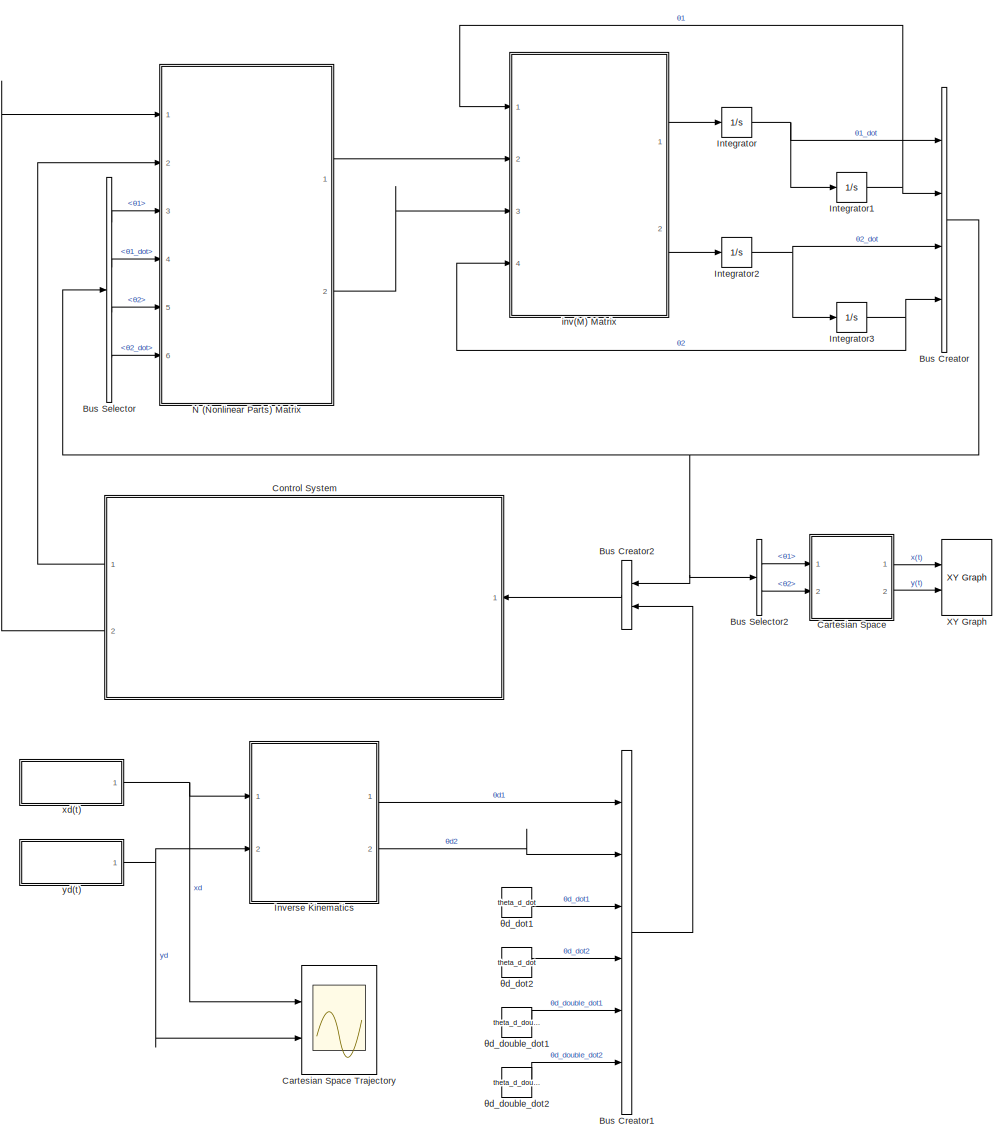
[diagram: root canvas - part 1/1, most of the canvas]
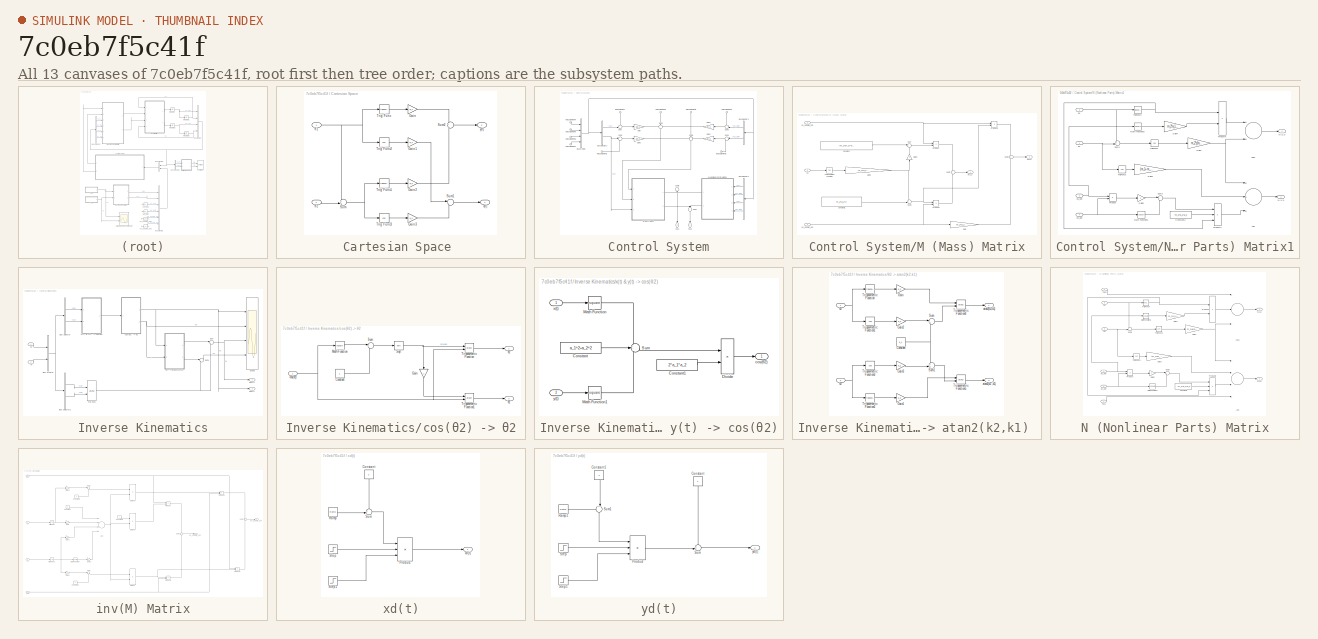
[diagram: thumbnail index - all 13 canvases of the model, root first then tree order]
MODEL slx_7c0eb7f5c41f
KIND model
CONFIG AbsTol = auto
CONFIG EnableMultiTasking = off
CONFIG FixedStep = 0.01
CONFIG MaxStep = auto
CONFIG MinStep = auto
CONFIG RelTol = 0.00001
CONFIG SampleTimeConstraint = Unconstrained
CONFIG Solver = FixedStepAuto
CONFIG SolverName = FixedStepAuto
CONFIG StartTime = 0.0
CONFIG StopTime = 10.0
WORKSPACE source: MAT-file member
WORKSPACE Kp_1 = 10000
WORKSPACE Kp_2 = 10000
WORKSPACE Kv_1 = 200
BLOCK [BusCreator] Bus Creator
  DisplayOption = bar
  InheritFromInputs = on
  Inputs = 4
  Ports = [4, 1]
BLOCK [BusCreator] Bus Creator1
  DisplayOption = bar
  InheritFromInputs = on
  Inputs = 6
  Ports = [6, 1]
BLOCK [BusCreator] Bus Creator2
  DisplayOption = bar
  InheritFromInputs = on
  Inputs = 2
  Ports = [2, 1]
BLOCK [BusSelector] Bus Selector
  OutputAsBus = off
  OutputSignals = θ1,θ1_dot,θ2,θ2_dot
  Ports = [1, 4]
BLOCK [BusSelector] Bus Selector2
  OutputAsBus = off
  OutputSignals = θ1,θ2
  Ports = [1, 2]
BLOCK [SubSystem] Cartesian Space 
  Ports = [2, 2]
  RequestExecContextInheritance = off
  TreatAsAtomicUnit = on
  Variant = off
BLOCK [Gain] Cartesian Space /Gain
  Gain = a_1
  OutDataTypeStr = Inherit: Inherit via internal rule
  ParamDataTypeStr = Inherit: Inherit via internal rule
  SaturateOnIntegerOverflow = off
BLOCK [Gain] Cartesian Space /Gain1
  Gain = a_1
  OutDataTypeStr = Inherit: Inherit via internal rule
  ParamDataTypeStr = Inherit: Inherit via internal rule
  SaturateOnIntegerOverflow = off
BLOCK [Gain] Cartesian Space /Gain2
  Gain = a_2
  OutDataTypeStr = Inherit: Inherit via internal rule
  ParamDataTypeStr = Inherit: Inherit via internal rule
  SaturateOnIntegerOverflow = off
BLOCK [Gain] Cartesian Space /Gain3
  Gain = a_2
  OutDataTypeStr = Inherit: Inherit via internal rule
  ParamDataTypeStr = Inherit: Inherit via internal rule
  SaturateOnIntegerOverflow = off
BLOCK [Sum] Cartesian Space /Sum
  IconShape = round
  InputSameDT = off
  Inputs = ++|
  OutDataTypeStr = Inherit: Inherit via internal rule
  Ports = [2, 1]
  SaturateOnIntegerOverflow = off
BLOCK [Sum] Cartesian Space /Sum1
  IconShape = round
  InputSameDT = off
  Inputs = |++
  OutDataTypeStr = Inherit: Inherit via internal rule
  Ports = [2, 1]
  SaturateOnIntegerOverflow = off
BLOCK [Sum] Cartesian Space /Sum2
  IconShape = round
  InputSameDT = off
  Inputs = +|+
  OutDataTypeStr = Inherit: Inherit via internal rule
  Ports = [2, 1]
  SaturateOnIntegerOverflow = off
BLOCK [Trigonometry] Cartesian Space /Trig Func
  Ports = [1, 1]
BLOCK [Trigonometry] Cartesian Space /Trig Func1
  Ports = [1, 1]
BLOCK [Trigonometry] Cartesian Space /Trig Func2
  Operator = cos
  Ports = [1, 1]
BLOCK [Trigonometry] Cartesian Space /Trig Func3
  Operator = cos
  Ports = [1, 1]
BLOCK [Outport] Cartesian Space /x(t)
  IconDisplay = Port number
BLOCK [Outport] Cartesian Space /y(t)
  IconDisplay = Port number
  Port = 2
BLOCK [Inport] Cartesian Space /θ1
  IconDisplay = Port number
BLOCK [Inport] Cartesian Space /θ2
  IconDisplay = Port number
  Port = 2
BLOCK [Scope] Cartesian Space Trajectory
  NumInputPorts = 2
  Ports = [2]
  ScopeSpecificationString = Simulink.scopes.TimeScopeBlockCfg('CurrentConfiguration', extmgr.ConfigurationSet(extmgr.Configuration('Core','General UI',true),extmgr.Configuration('Core','Source UI',true),extmgr.Configuration('Sources','WiredSimulink',true,'DataLoggingVariableName','ScopeData1'),extmgr.Configuration('Visuals','Time Domain',true,'SerializedDisplays',{struct('MinYLimReal','-0.25','MaxYLimReal','2.25','YLabelReal...<+1379ch>
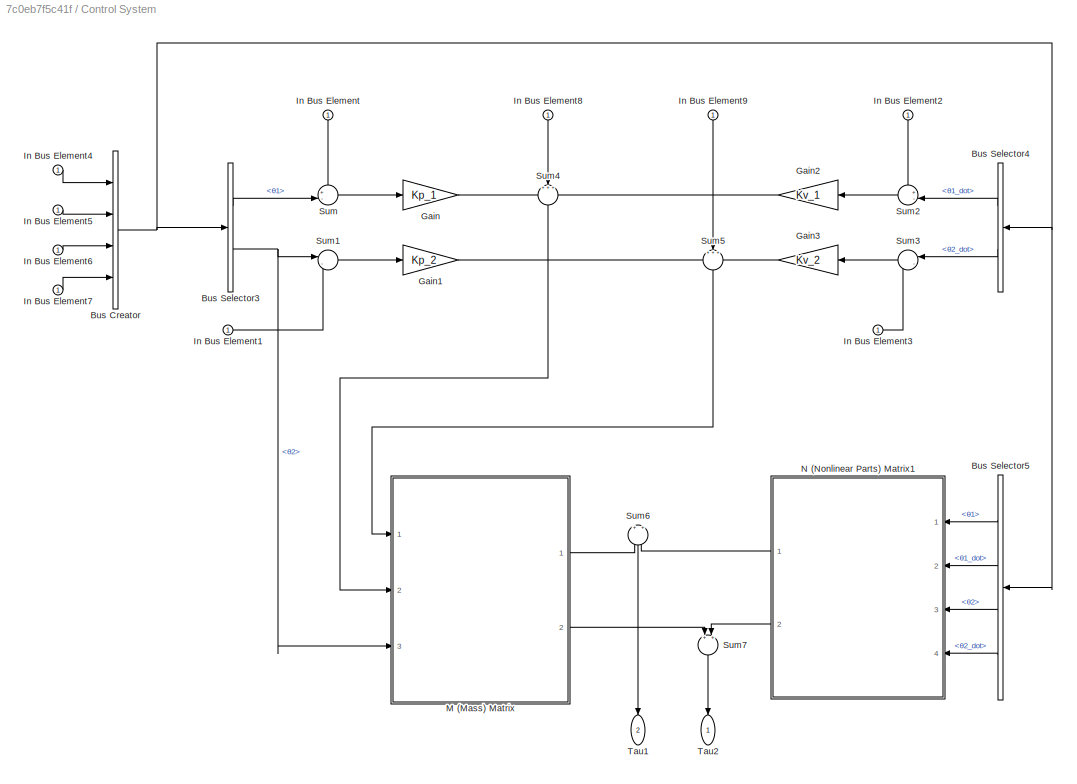
BLOCK [SubSystem] Control System
  Ports = [1, 2]
  RequestExecContextInheritance = off
  TreatAsAtomicUnit = on
  Variant = off
BLOCK [BusCreator] Control System/Bus Creator
  DisplayOption = bar
  InheritFromInputs = on
  Inputs = 4
  Ports = [4, 1]
BLOCK [BusSelector] Control System/Bus Selector3
  OutputAsBus = off
  OutputSignals = θ1,θ2
  Ports = [1, 2]
BLOCK [BusSelector] Control System/Bus Selector4
  OutputAsBus = off
  OutputSignals = θ1_dot,θ2_dot
  Ports = [1, 2]
BLOCK [BusSelector] Control System/Bus Selector5
  OutputAsBus = off
  OutputSignals = θ1,θ1_dot,θ2,θ2_dot
  Ports = [1, 4]
BLOCK [Gain] Control System/Gain
  Gain = Kp_1
  OutDataTypeStr = Inherit: Inherit via internal rule
  ParamDataTypeStr = Inherit: Inherit via internal rule
  SaturateOnIntegerOverflow = off
BLOCK [Gain] Control System/Gain1
  Gain = Kp_2
  OutDataTypeStr = Inherit: Inherit via internal rule
  ParamDataTypeStr = Inherit: Inherit via internal rule
  SaturateOnIntegerOverflow = off
BLOCK [Gain] Control System/Gain2
  Gain = Kv_1
  OutDataTypeStr = Inherit: Inherit via internal rule
  ParamDataTypeStr = Inherit: Inherit via internal rule
  SaturateOnIntegerOverflow = off
BLOCK [Gain] Control System/Gain3
  Gain = Kv_2
  OutDataTypeStr = Inherit: Inherit via internal rule
  ParamDataTypeStr = Inherit: Inherit via internal rule
  SaturateOnIntegerOverflow = off
BLOCK [Inport] Control System/In Bus Element
  IconDisplay = Port number
BLOCK [Inport] Control System/In Bus Element1
  IconDisplay = Port number
BLOCK [Inport] Control System/In Bus Element2
  IconDisplay = Port number
BLOCK [Inport] Control System/In Bus Element3
  IconDisplay = Port number
BLOCK [Inport] Control System/In Bus Element4
  IconDisplay = Port number
BLOCK [Inport] Control System/In Bus Element5
  IconDisplay = Port number
BLOCK [Inport] Control System/In Bus Element6
  IconDisplay = Port number
BLOCK [Inport] Control System/In Bus Element7
  IconDisplay = Port number
BLOCK [Inport] Control System/In Bus Element8
  IconDisplay = Port number
BLOCK [Inport] Control System/In Bus Element9
  IconDisplay = Port number
BLOCK [SubSystem] Control System/M (Mass) Matrix
  Ports = [3, 2]
  RequestExecContextInheritance = off
  TreatAsAtomicUnit = on
  Variant = off
BLOCK [Constant] Control System/M (Mass) Matrix/Constant
  Value = (m_1+m_2)*a_1^2+m_2*a_2^2
BLOCK [Constant] Control System/M (Mass) Matrix/Constant1
  Value = m_2*a_2^2
BLOCK [Gain] Control System/M (Mass) Matrix/Gain
  Gain = m_2*a_2^2
  OutDataTypeStr = Inherit: Inherit via internal rule
  ParamDataTypeStr = Inherit: Inherit via internal rule
  SaturateOnIntegerOverflow = off
BLOCK [Gain] Control System/M (Mass) Matrix/Gain1
  Gain = m_2*a_1*a_2
  OutDataTypeStr = Inherit: Inherit via internal rule
  ParamDataTypeStr = Inherit: Inherit via internal rule
  SaturateOnIntegerOverflow = off
BLOCK [Gain] Control System/M (Mass) Matrix/Gain2
  Gain = 2
  OutDataTypeStr = Inherit: Inherit via internal rule
  ParamDataTypeStr = Inherit: Inherit via internal rule
  SaturateOnIntegerOverflow = off
BLOCK [Outport] Control System/M (Mass) Matrix/M(1,1)
  IconDisplay = Port number
BLOCK [Outport] Control System/M (Mass) Matrix/M(2,1)
  IconDisplay = Port number
  Port = 2
BLOCK [Product] Control System/M (Mass) Matrix/Product
  InputSameDT = off
  OutDataTypeStr = Inherit: Inherit via internal rule
  Ports = [2, 1]
  RndMeth = Floor
  SaturateOnIntegerOverflow = off
BLOCK [Product] Control System/M (Mass) Matrix/Product1
  InputSameDT = off
  OutDataTypeStr = Inherit: Inherit via internal rule
  Ports = [2, 1]
  RndMeth = Floor
  SaturateOnIntegerOverflow = off
BLOCK [Product] Control System/M (Mass) Matrix/Product2
  InputSameDT = off
  OutDataTypeStr = Inherit: Inherit via internal rule
  Ports = [2, 1]
  RndMeth = Floor
  SaturateOnIntegerOverflow = off
BLOCK [Sum] Control System/M (Mass) Matrix/Sum
  IconShape = round
  InputSameDT = off
  Inputs = |++
  OutDataTypeStr = Inherit: Inherit via internal rule
  Ports = [2, 1]
  SaturateOnIntegerOverflow = off
BLOCK [Sum] Control System/M (Mass) Matrix/Sum1
  IconShape = round
  InputSameDT = off
  Inputs = ++|
  OutDataTypeStr = Inherit: Inherit via internal rule
  Ports = [2, 1]
  SaturateOnIntegerOverflow = off
BLOCK [Sum] Control System/M (Mass) Matrix/Sum2
  IconShape = round
  InputSameDT = off
  Inputs = +|+
  OutDataTypeStr = Inherit: Inherit via internal rule
  Ports = [2, 1]
  SaturateOnIntegerOverflow = off
BLOCK [Sum] Control System/M (Mass) Matrix/Sum3
  IconShape = round
  InputSameDT = off
  Inputs = +|+
  OutDataTypeStr = Inherit: Inherit via internal rule
  Ports = [2, 1]
  SaturateOnIntegerOverflow = off
BLOCK [Trigonometry] Control System/M (Mass) Matrix/Trigonometric Function
  Operator = cos
  Ports = [1, 1]
BLOCK [Inport] Control System/M (Mass) Matrix/θ1_double_dot
  IconDisplay = Port number
  Port = 2
BLOCK [Inport] Control System/M (Mass) Matrix/θ2
  IconDisplay = Port number
  Port = 3
BLOCK [Inport] Control System/M (Mass) Matrix/θ2_double_dot
  IconDisplay = Port number
BLOCK [SubSystem] Control System/N (Nonlinear Parts) Matrix1
  Ports = [4, 2]
  RequestExecContextInheritance = off
  TreatAsAtomicUnit = on
  Variant = off
BLOCK [Sum] Control System/N (Nonlinear Parts) Matrix1/Add
  InputSameDT = off
  Inputs = +++
  OutDataTypeStr = Inherit: Inherit via internal rule
  Ports = [3, 1]
  SaturateOnIntegerOverflow = off
BLOCK [Sum] Control System/N (Nonlinear Parts) Matrix1/Add1
  InputSameDT = off
  OutDataTypeStr = Inherit: Inherit via internal rule
  Ports = [2, 1]
  SaturateOnIntegerOverflow = off
BLOCK [Constant] Control System/N (Nonlinear Parts) Matrix1/Constant2
  Value = -m_2*a_1*a_2
BLOCK [Gain] Control System/N (Nonlinear Parts) Matrix1/Gain1
  Gain = m_2*g*a_2
  OutDataTypeStr = Inherit: Inherit via internal rule
  ParamDataTypeStr = Inherit: Inherit via internal rule
  SaturateOnIntegerOverflow = off
BLOCK [Gain] Control System/N (Nonlinear Parts) Matrix1/Gain3
  Gain = (m_1+m_2)*g*a_1
  OutDataTypeStr = Inherit: Inherit via internal rule
  ParamDataTypeStr = Inherit: Inherit via internal rule
  SaturateOnIntegerOverflow = off
BLOCK [Gain] Control System/N (Nonlinear Parts) Matrix1/Gain4
  Gain = m_2*a_1*a_2
  OutDataTypeStr = Inherit: Inherit via internal rule
  ParamDataTypeStr = Inherit: Inherit via internal rule
  SaturateOnIntegerOverflow = off
BLOCK [Gain] Control System/N (Nonlinear Parts) Matrix1/Gain5
  Gain = 2
  OutDataTypeStr = Inherit: Inherit via internal rule
  ParamDataTypeStr = Inherit: Inherit via internal rule
  SaturateOnIntegerOverflow = off
BLOCK [Math] Control System/N (Nonlinear Parts) Matrix1/Math Function2
  Operator = square
  Ports = [1, 1]
BLOCK [Math] Control System/N (Nonlinear Parts) Matrix1/Math Function3
  Operator = square
  Ports = [1, 1]
BLOCK [Outport] Control System/N (Nonlinear Parts) Matrix1/N(1,1)
  IconDisplay = Port number
BLOCK [Outport] Control System/N (Nonlinear Parts) Matrix1/N(2,1)
  IconDisplay = Port number
  Port = 2
BLOCK [Product] Control System/N (Nonlinear Parts) Matrix1/Product
  InputSameDT = off
  OutDataTypeStr = Inherit: Inherit via internal rule
  Ports = [2, 1]
  RndMeth = Floor
  SaturateOnIntegerOverflow = off
BLOCK [Product] Control System/N (Nonlinear Parts) Matrix1/Product2
  InputSameDT = off
  Inputs = 3
  OutDataTypeStr = Inherit: Inherit via internal rule
  Ports = [3, 1]
  RndMeth = Floor
  SaturateOnIntegerOverflow = off
BLOCK [Product] Control System/N (Nonlinear Parts) Matrix1/Product5
  InputSameDT = off
  OutDataTypeStr = Inherit: Inherit via internal rule
  Ports = [2, 1]
  RndMeth = Floor
  SaturateOnIntegerOverflow = off
BLOCK [Sum] Control System/N (Nonlinear Parts) Matrix1/Sum1
  IconShape = round
  InputSameDT = off
  Inputs = ++|
  OutDataTypeStr = Inherit: Inherit via internal rule
  Ports = [2, 1]
  SaturateOnIntegerOverflow = off
BLOCK [Sum] Control System/N (Nonlinear Parts) Matrix1/Sum3
  IconShape = round
  InputSameDT = off
  Inputs = |++
  OutDataTypeStr = Inherit: Inherit via internal rule
  Ports = [2, 1]
  SaturateOnIntegerOverflow = off
BLOCK [Trigonometry] Control System/N (Nonlinear Parts) Matrix1/TrigFunc1
  Operator = cos
  Ports = [1, 1]
BLOCK [Trigonometry] Control System/N (Nonlinear Parts) Matrix1/TrigFunc3
  Operator = cos
  Ports = [1, 1]
BLOCK [Trigonometry] Control System/N (Nonlinear Parts) Matrix1/TrigFunc4
  Ports = [1, 1]
BLOCK [Inport] Control System/N (Nonlinear Parts) Matrix1/θ1 
  IconDisplay = Port number
BLOCK [Inport] Control System/N (Nonlinear Parts) Matrix1/θ1_dot
  IconDisplay = Port number
  Port = 2
BLOCK [Inport] Control System/N (Nonlinear Parts) Matrix1/θ2
  IconDisplay = Port number
  Port = 3
BLOCK [Inport] Control System/N (Nonlinear Parts) Matrix1/θ2_dot
  IconDisplay = Port number
  Port = 4
BLOCK [Sum] Control System/Sum
  IconShape = round
  InputSameDT = off
  Inputs = +-|
  OutDataTypeStr = Inherit: Inherit via internal rule
  Ports = [2, 1]
  SaturateOnIntegerOverflow = off
BLOCK [Sum] Control System/Sum1
  IconShape = round
  InputSameDT = off
  Inputs = |-+
  OutDataTypeStr = Inherit: Inherit via internal rule
  Ports = [2, 1]
  SaturateOnIntegerOverflow = off
BLOCK [Sum] Control System/Sum2
  IconShape = round
  InputSameDT = off
  Inputs = +-|
  OutDataTypeStr = Inherit: Inherit via internal rule
  Ports = [2, 1]
  SaturateOnIntegerOverflow = off
BLOCK [Sum] Control System/Sum3
  IconShape = round
  InputSameDT = off
  Inputs = |-+
  OutDataTypeStr = Inherit: Inherit via internal rule
  Ports = [2, 1]
  SaturateOnIntegerOverflow = off
BLOCK [Sum] Control System/Sum4
  IconShape = round
  InputSameDT = off
  Inputs = +++
  OutDataTypeStr = Inherit: Inherit via internal rule
  Ports = [3, 1]
  SaturateOnIntegerOverflow = off
BLOCK [Sum] Control System/Sum5
  IconShape = round
  InputSameDT = off
  Inputs = +++
  OutDataTypeStr = Inherit: Inherit via internal rule
  Ports = [3, 1]
  SaturateOnIntegerOverflow = off
BLOCK [Sum] Control System/Sum6
  IconShape = round
  InputSameDT = off
  Inputs = +|+
  OutDataTypeStr = Inherit: Inherit via internal rule
  Ports = [2, 1]
  SaturateOnIntegerOverflow = off
BLOCK [Sum] Control System/Sum7
  IconShape = round
  InputSameDT = off
  Inputs = +|+
  OutDataTypeStr = Inherit: Inherit via internal rule
  Ports = [2, 1]
  SaturateOnIntegerOverflow = off
BLOCK [Outport] Control System/Tau1
  IconDisplay = Port number
  Port = 2
BLOCK [Outport] Control System/Tau2
  IconDisplay = Port number
BLOCK [Integrator] Integrator
  Ports = [1, 1]
BLOCK [Integrator] Integrator1
  Ports = [1, 1]
BLOCK [Integrator] Integrator2
  Ports = [1, 1]
BLOCK [Integrator] Integrator3
  Ports = [1, 1]
BLOCK [SubSystem] Inverse Kinematics
  Ports = [2, 2]
  RequestExecContextInheritance = off
  TreatAsAtomicUnit = on
  Variant = off
BLOCK [BusCreator] Inverse Kinematics/Bus Creator
  DisplayOption = bar
  InheritFromInputs = on
  Inputs = 2
  Ports = [2, 1]
BLOCK [BusSelector] Inverse Kinematics/Bus Selector
  OutputAsBus = off
  OutputSignals = xd,yd
  Ports = [1, 2]
BLOCK [BusSelector] Inverse Kinematics/Bus Selector1
  OutputAsBus = off
  OutputSignals = yd,xd
  Ports = [1, 2]
BLOCK [Scope] Inverse Kinematics/Scope
  NumInputPorts = 4
  Ports = [4]
  ScopeSpecificationString = Simulink.scopes.TimeScopeBlockCfg('CurrentConfiguration', extmgr.ConfigurationSet(extmgr.Configuration('Core','General UI',true,'FigureColor',[0.831372549019608 0.815686274509804 0.784313725490196]),extmgr.Configuration('Core','Source UI',true),extmgr.Configuration('Sources','WiredSimulink',true,'DataLoggingVariableName','ScopeData1'),extmgr.Configuration('Visuals','Time Domain',true,'SerializedDi...<+1582ch>
BLOCK [Sum] Inverse Kinematics/Sum
  IconShape = round
  InputSameDT = off
  Inputs = |-+
  OutDataTypeStr = Inherit: Inherit via internal rule
  Ports = [2, 1]
  SaturateOnIntegerOverflow = off
BLOCK [Sum] Inverse Kinematics/Sum1
  IconShape = round
  InputSameDT = off
  Inputs = |-+
  OutDataTypeStr = Inherit: Inherit via internal rule
  Ports = [2, 1]
  SaturateOnIntegerOverflow = off
BLOCK [Trigonometry] Inverse Kinematics/Trig Func
  Operator = atan2
  Ports = [2, 1]
BLOCK [SubSystem] Inverse Kinematics/cos(θ2) -> θ2
  Ports = [1, 2]
  RequestExecContextInheritance = off
  TreatAsAtomicUnit = on
  Variant = off
BLOCK [Constant] Inverse Kinematics/cos(θ2) -> θ2/Constant
BLOCK [Gain] Inverse Kinematics/cos(θ2) -> θ2/Gain
  Gain = -1
  OutDataTypeStr = Inherit: Inherit via internal rule
  ParamDataTypeStr = Inherit: Inherit via internal rule
  SaturateOnIntegerOverflow = off
BLOCK [Math] Inverse Kinematics/cos(θ2) -> θ2/Math Function
  Operator = square
  Ports = [1, 1]
BLOCK [Sqrt] Inverse Kinematics/cos(θ2) -> θ2/Sqrt
BLOCK [Sum] Inverse Kinematics/cos(θ2) -> θ2/Sum
  IconShape = round
  InputSameDT = off
  Inputs = |-+
  OutDataTypeStr = Inherit: Inherit via internal rule
  Ports = [2, 1]
  SaturateOnIntegerOverflow = off
BLOCK [Trigonometry] Inverse Kinematics/cos(θ2) -> θ2/Trigonometric Function
  Operator = atan2
  Ports = [2, 1]
BLOCK [Trigonometry] Inverse Kinematics/cos(θ2) -> θ2/Trigonometric Function1
  Operator = atan2
  Ports = [2, 1]
BLOCK [Inport] Inverse Kinematics/cos(θ2) -> θ2/cos(θ2)
  IconDisplay = Port number
BLOCK [Outport] Inverse Kinematics/cos(θ2) -> θ2/θ2
  IconDisplay = Port number
BLOCK [Outport] Inverse Kinematics/cos(θ2) -> θ2/θ2'
  IconDisplay = Port number
  Port = 2
BLOCK [SubSystem] Inverse Kinematics/x(t) & y(t) -> cos(θ2)
  Ports = [2, 1]
  RequestExecContextInheritance = off
  TreatAsAtomicUnit = on
  Variant = off
BLOCK [Constant] Inverse Kinematics/x(t) & y(t) -> cos(θ2)/Constant
  Value = a_1^2+a_2^2
BLOCK [Constant] Inverse Kinematics/x(t) & y(t) -> cos(θ2)/Constant1
  Value = 2*a_1*a_2
BLOCK [Product] Inverse Kinematics/x(t) & y(t) -> cos(θ2)/Divide
  InputSameDT = off
  Inputs = */
  OutDataTypeStr = Inherit: Inherit via internal rule
  Ports = [2, 1]
  RndMeth = Floor
  SaturateOnIntegerOverflow = off
BLOCK [Math] Inverse Kinematics/x(t) & y(t) -> cos(θ2)/Math Function
  Operator = square
  Ports = [1, 1]
BLOCK [Math] Inverse Kinematics/x(t) & y(t) -> cos(θ2)/Math Function1
  Operator = square
  Ports = [1, 1]
BLOCK [Sum] Inverse Kinematics/x(t) & y(t) -> cos(θ2)/Sum
  IconShape = round
  InputSameDT = off
  Inputs = +-+
  OutDataTypeStr = Inherit: Inherit via internal rule
  Ports = [3, 1]
  SaturateOnIntegerOverflow = off
BLOCK [Outport] Inverse Kinematics/x(t) & y(t) -> cos(θ2)/cos(θ2)
  IconDisplay = Port number
BLOCK [Inport] Inverse Kinematics/x(t) & y(t) -> cos(θ2)/x(t)
  IconDisplay = Port number
BLOCK [Inport] Inverse Kinematics/x(t) & y(t) -> cos(θ2)/y(t)
  IconDisplay = Port number
  Port = 2
BLOCK [Inport] Inverse Kinematics/xd
  IconDisplay = Port number
BLOCK [Inport] Inverse Kinematics/yd
  IconDisplay = Port number
  Port = 2
BLOCK [SubSystem] Inverse Kinematics/θ2 -> atan2(k2,k1) 
  Ports = [2, 2]
  RequestExecContextInheritance = off
  TreatAsAtomicUnit = on
  Variant = off
BLOCK [Constant] Inverse Kinematics/θ2 -> atan2(k2,k1) /Constant
  Value = a_1
BLOCK [Gain] Inverse Kinematics/θ2 -> atan2(k2,k1) /Gain
  Gain = a_2
  OutDataTypeStr = Inherit: Inherit via internal rule
  ParamDataTypeStr = Inherit: Inherit via internal rule
  SaturateOnIntegerOverflow = off
BLOCK [Gain] Inverse Kinematics/θ2 -> atan2(k2,k1) /Gain1
  Gain = a_2
  OutDataTypeStr = Inherit: Inherit via internal rule
  ParamDataTypeStr = Inherit: Inherit via internal rule
  SaturateOnIntegerOverflow = off
BLOCK [Gain] Inverse Kinematics/θ2 -> atan2(k2,k1) /Gain2
  Gain = a_2
  OutDataTypeStr = Inherit: Inherit via internal rule
  ParamDataTypeStr = Inherit: Inherit via internal rule
  SaturateOnIntegerOverflow = off
BLOCK [Gain] Inverse Kinematics/θ2 -> atan2(k2,k1) /Gain3
  Gain = a_2
  OutDataTypeStr = Inherit: Inherit via internal rule
  ParamDataTypeStr = Inherit: Inherit via internal rule
  SaturateOnIntegerOverflow = off
BLOCK [Sum] Inverse Kinematics/θ2 -> atan2(k2,k1) /Sum
  IconShape = round
  InputSameDT = off
  Inputs = |++
  OutDataTypeStr = Inherit: Inherit via internal rule
  Ports = [2, 1]
  SaturateOnIntegerOverflow = off
BLOCK [Sum] Inverse Kinematics/θ2 -> atan2(k2,k1) /Sum1
  IconShape = round
  InputSameDT = off
  Inputs = ++|
  OutDataTypeStr = Inherit: Inherit via internal rule
  Ports = [2, 1]
  SaturateOnIntegerOverflow = off
BLOCK [Trigonometry] Inverse Kinematics/θ2 -> atan2(k2,k1) /Trigonometric Function
  Ports = [1, 1]
BLOCK [Trigonometry] Inverse Kinematics/θ2 -> atan2(k2,k1) /Trigonometric Function1
  Operator = cos
  Ports = [1, 1]
BLOCK [Trigonometry] Inverse Kinematics/θ2 -> atan2(k2,k1) /Trigonometric Function2
  Ports = [1, 1]
BLOCK [Trigonometry] Inverse Kinematics/θ2 -> atan2(k2,k1) /Trigonometric Function3
  Operator = cos
  Ports = [1, 1]
BLOCK [Trigonometry] Inverse Kinematics/θ2 -> atan2(k2,k1) /Trigonometric Function4
  Operator = atan2
  Ports = [2, 1]
BLOCK [Trigonometry] Inverse Kinematics/θ2 -> atan2(k2,k1) /Trigonometric Function5
  Operator = atan2
  Ports = [2, 1]
BLOCK [Outport] Inverse Kinematics/θ2 -> atan2(k2,k1) /atan2(k2',k1)
  IconDisplay = Port number
  Port = 2
BLOCK [Outport] Inverse Kinematics/θ2 -> atan2(k2,k1) /atan2(k2,k1)
  IconDisplay = Port number
BLOCK [Inport] Inverse Kinematics/θ2 -> atan2(k2,k1) /θ2
  IconDisplay = Port number
BLOCK [Inport] Inverse Kinematics/θ2 -> atan2(k2,k1) /θ2'
  IconDisplay = Port number
  Port = 2
BLOCK [Outport] Inverse Kinematics/θd1(t)
  IconDisplay = Port number
BLOCK [Outport] Inverse Kinematics/θd2(t)
  IconDisplay = Port number
  Port = 2
BLOCK [SubSystem] N (Nonlinear Parts) Matrix
  Ports = [6, 2]
  RequestExecContextInheritance = off
  TreatAsAtomicUnit = on
  Variant = off
BLOCK [Sum] N (Nonlinear Parts) Matrix/Add
  InputSameDT = off
  Inputs = ---+
  OutDataTypeStr = Inherit: Inherit via internal rule
  Ports = [4, 1]
  SaturateOnIntegerOverflow = off
BLOCK [Sum] N (Nonlinear Parts) Matrix/Add1
  InputSameDT = off
  Inputs = +--
  OutDataTypeStr = Inherit: Inherit via internal rule
  Ports = [3, 1]
  SaturateOnIntegerOverflow = off
BLOCK [Constant] N (Nonlinear Parts) Matrix/Constant2
  Value = -m_2*a_1*a_2
BLOCK [Gain] N (Nonlinear Parts) Matrix/Gain1
  Gain = m_2*g*a_2
  OutDataTypeStr = Inherit: Inherit via internal rule
  ParamDataTypeStr = Inherit: Inherit via internal rule
  SaturateOnIntegerOverflow = off
BLOCK [Gain] N (Nonlinear Parts) Matrix/Gain3
  Gain = (m_1+m_2)*g*a_1
  OutDataTypeStr = Inherit: Inherit via internal rule
  ParamDataTypeStr = Inherit: Inherit via internal rule
  SaturateOnIntegerOverflow = off
BLOCK [Gain] N (Nonlinear Parts) Matrix/Gain4
  Gain = m_2*a_1*a_2
  OutDataTypeStr = Inherit: Inherit via internal rule
  ParamDataTypeStr = Inherit: Inherit via internal rule
  SaturateOnIntegerOverflow = off
BLOCK [Gain] N (Nonlinear Parts) Matrix/Gain5
  Gain = 2
  OutDataTypeStr = Inherit: Inherit via internal rule
  ParamDataTypeStr = Inherit: Inherit via internal rule
  SaturateOnIntegerOverflow = off
BLOCK [Math] N (Nonlinear Parts) Matrix/Math Function2
  Operator = square
  Ports = [1, 1]
BLOCK [Math] N (Nonlinear Parts) Matrix/Math Function3
  Operator = square
  Ports = [1, 1]
BLOCK [Outport] N (Nonlinear Parts) Matrix/N(1,1)
  IconDisplay = Port number
BLOCK [Outport] N (Nonlinear Parts) Matrix/N(2,1)
  IconDisplay = Port number
  Port = 2
BLOCK [Product] N (Nonlinear Parts) Matrix/Product
  InputSameDT = off
  OutDataTypeStr = Inherit: Inherit via internal rule
  Ports = [2, 1]
  RndMeth = Floor
  SaturateOnIntegerOverflow = off
BLOCK [Product] N (Nonlinear Parts) Matrix/Product2
  InputSameDT = off
  Inputs = 3
  OutDataTypeStr = Inherit: Inherit via internal rule
  Ports = [3, 1]
  RndMeth = Floor
  SaturateOnIntegerOverflow = off
BLOCK [Product] N (Nonlinear Parts) Matrix/Product5
  InputSameDT = off
  OutDataTypeStr = Inherit: Inherit via internal rule
  Ports = [2, 1]
  RndMeth = Floor
  SaturateOnIntegerOverflow = off
BLOCK [Sum] N (Nonlinear Parts) Matrix/Sum1
  IconShape = round
  InputSameDT = off
  Inputs = ++|
  OutDataTypeStr = Inherit: Inherit via internal rule
  Ports = [2, 1]
  SaturateOnIntegerOverflow = off
BLOCK [Sum] N (Nonlinear Parts) Matrix/Sum3
  IconShape = round
  InputSameDT = off
  Inputs = |++
  OutDataTypeStr = Inherit: Inherit via internal rule
  Ports = [2, 1]
  SaturateOnIntegerOverflow = off
BLOCK [Inport] N (Nonlinear Parts) Matrix/Tau1
  IconDisplay = Port number
BLOCK [Inport] N (Nonlinear Parts) Matrix/Tau2
  IconDisplay = Port number
  Port = 2
BLOCK [Trigonometry] N (Nonlinear Parts) Matrix/TrigFunc1
  Operator = cos
  Ports = [1, 1]
BLOCK [Trigonometry] N (Nonlinear Parts) Matrix/TrigFunc3
  Operator = cos
  Ports = [1, 1]
BLOCK [Trigonometry] N (Nonlinear Parts) Matrix/TrigFunc4
  Ports = [1, 1]
BLOCK [Inport] N (Nonlinear Parts) Matrix/θ1 
  IconDisplay = Port number
  Port = 3
BLOCK [Inport] N (Nonlinear Parts) Matrix/θ1_dot
  IconDisplay = Port number
  Port = 4
BLOCK [Inport] N (Nonlinear Parts) Matrix/θ2
  IconDisplay = Port number
  Port = 5
BLOCK [Inport] N (Nonlinear Parts) Matrix/θ2_dot
  IconDisplay = Port number
  Port = 6
BLOCK [Reference] XY Graph  REF=simulink/Sinks/XY Graph
  Ports = [2]
  SourceBlock = simulink/Sinks/XY Graph
  SourceProductBaseCode = SL
  SourceProductName = Simulink
  SourceType = XY scope.
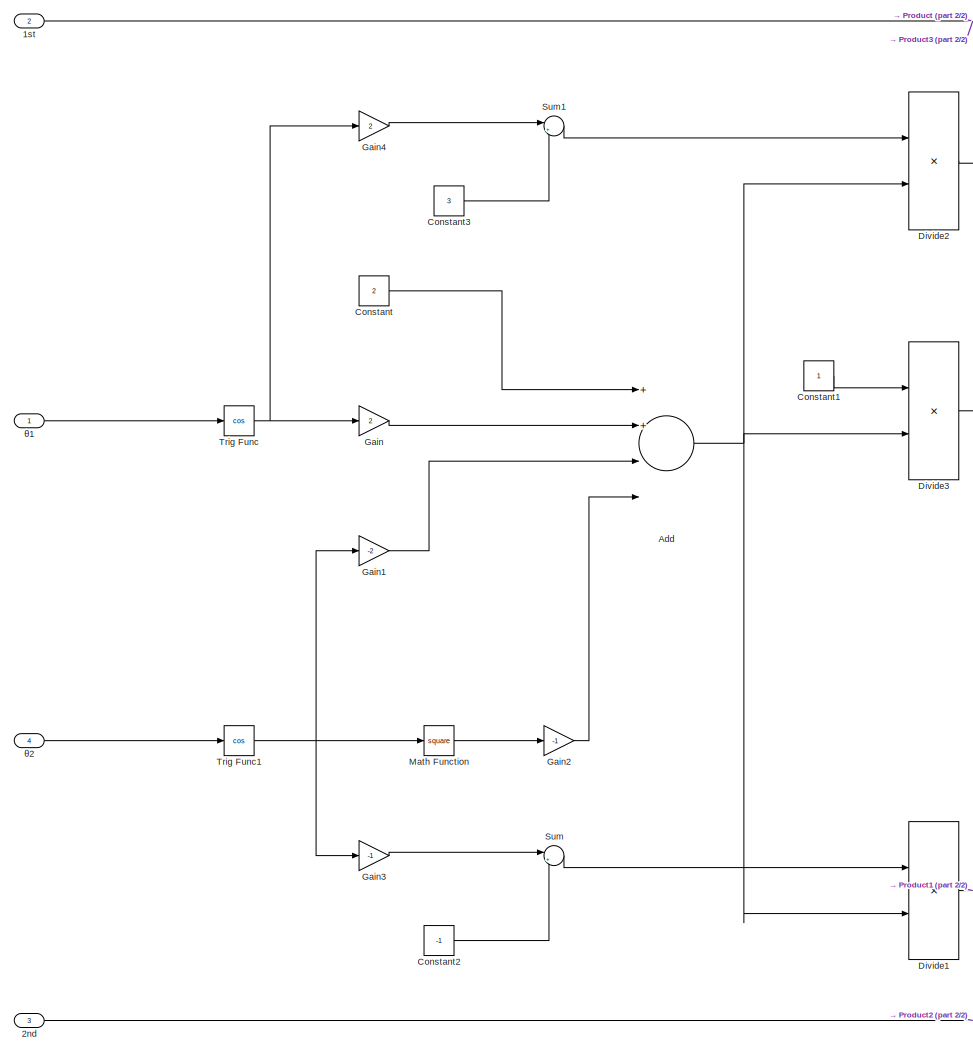
[diagram: inv(M) Matrix - part 1/2, left side, full height]
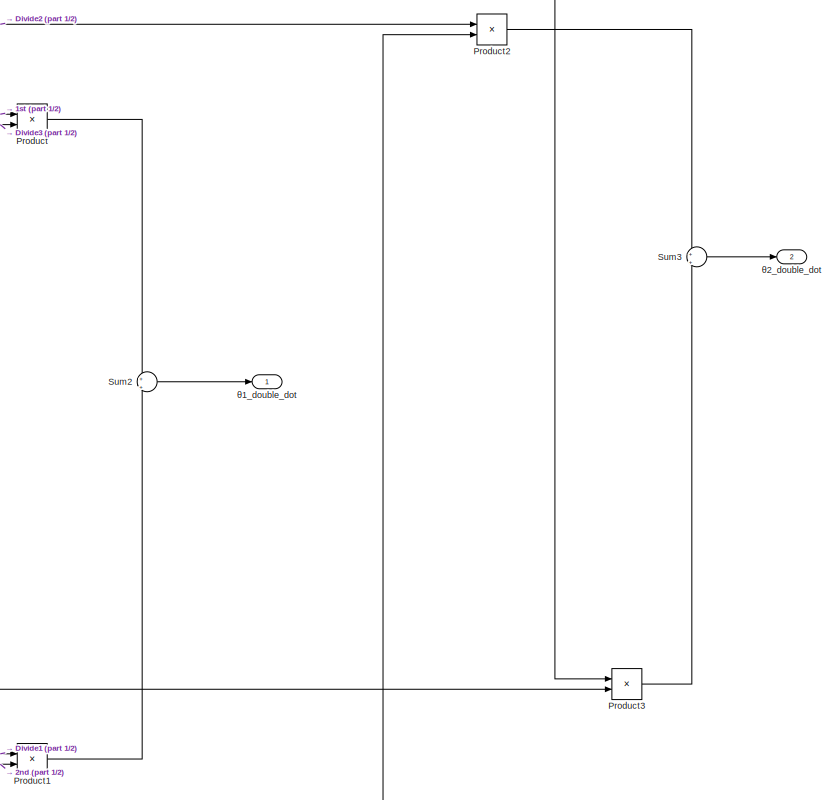
[diagram: inv(M) Matrix - part 2/2, right side, full height]
BLOCK [SubSystem] inv(M) Matrix
  Ports = [4, 2]
  RequestExecContextInheritance = off
  TreatAsAtomicUnit = on
  Variant = off
BLOCK [Inport] inv(M) Matrix/1st
  IconDisplay = Port number
  Port = 2
BLOCK [Inport] inv(M) Matrix/2nd
  IconDisplay = Port number
  Port = 3
BLOCK [Sum] inv(M) Matrix/Add
  InputSameDT = off
  Inputs = 4
  OutDataTypeStr = Inherit: Inherit via internal rule
  Ports = [4, 1]
  SaturateOnIntegerOverflow = off
BLOCK [Constant] inv(M) Matrix/Constant
  Value = 2
BLOCK [Constant] inv(M) Matrix/Constant1
BLOCK [Constant] inv(M) Matrix/Constant2
  Value = -1
BLOCK [Constant] inv(M) Matrix/Constant3
  Value = 3
BLOCK [Product] inv(M) Matrix/Divide1
  InputSameDT = off
  Inputs = */
  OutDataTypeStr = Inherit: Inherit via internal rule
  Ports = [2, 1]
  RndMeth = Floor
  SaturateOnIntegerOverflow = off
BLOCK [Product] inv(M) Matrix/Divide2
  InputSameDT = off
  Inputs = */
  OutDataTypeStr = Inherit: Inherit via internal rule
  Ports = [2, 1]
  RndMeth = Floor
  SaturateOnIntegerOverflow = off
BLOCK [Product] inv(M) Matrix/Divide3
  InputSameDT = off
  Inputs = */
  OutDataTypeStr = Inherit: Inherit via internal rule
  Ports = [2, 1]
  RndMeth = Floor
  SaturateOnIntegerOverflow = off
BLOCK [Gain] inv(M) Matrix/Gain
  Gain = 2
  OutDataTypeStr = Inherit: Inherit via internal rule
  ParamDataTypeStr = Inherit: Inherit via internal rule
  SaturateOnIntegerOverflow = off
BLOCK [Gain] inv(M) Matrix/Gain1
  Gain = -2
  OutDataTypeStr = Inherit: Inherit via internal rule
  ParamDataTypeStr = Inherit: Inherit via internal rule
  SaturateOnIntegerOverflow = off
BLOCK [Gain] inv(M) Matrix/Gain2
  Gain = -1
  OutDataTypeStr = Inherit: Inherit via internal rule
  ParamDataTypeStr = Inherit: Inherit via internal rule
  SaturateOnIntegerOverflow = off
BLOCK [Gain] inv(M) Matrix/Gain3
  Gain = -1
  OutDataTypeStr = Inherit: Inherit via internal rule
  ParamDataTypeStr = Inherit: Inherit via internal rule
  SaturateOnIntegerOverflow = off
BLOCK [Gain] inv(M) Matrix/Gain4
  Gain = 2
  OutDataTypeStr = Inherit: Inherit via internal rule
  ParamDataTypeStr = Inherit: Inherit via internal rule
  SaturateOnIntegerOverflow = off
BLOCK [Math] inv(M) Matrix/Math Function
  Operator = square
  Ports = [1, 1]
BLOCK [Product] inv(M) Matrix/Product
  InputSameDT = off
  OutDataTypeStr = Inherit: Inherit via internal rule
  Ports = [2, 1]
  RndMeth = Floor
  SaturateOnIntegerOverflow = off
BLOCK [Product] inv(M) Matrix/Product1
  InputSameDT = off
  OutDataTypeStr = Inherit: Inherit via internal rule
  Ports = [2, 1]
  RndMeth = Floor
  SaturateOnIntegerOverflow = off
BLOCK [Product] inv(M) Matrix/Product2
  InputSameDT = off
  OutDataTypeStr = Inherit: Inherit via internal rule
  Ports = [2, 1]
  RndMeth = Floor
  SaturateOnIntegerOverflow = off
BLOCK [Product] inv(M) Matrix/Product3
  InputSameDT = off
  OutDataTypeStr = Inherit: Inherit via internal rule
  Ports = [2, 1]
  RndMeth = Floor
  SaturateOnIntegerOverflow = off
BLOCK [Sum] inv(M) Matrix/Sum
  IconShape = round
  InputSameDT = off
  Inputs = |++
  OutDataTypeStr = Inherit: Inherit via internal rule
  Ports = [2, 1]
  SaturateOnIntegerOverflow = off
BLOCK [Sum] inv(M) Matrix/Sum1
  IconShape = round
  InputSameDT = off
  Inputs = |++
  OutDataTypeStr = Inherit: Inherit via internal rule
  Ports = [2, 1]
  SaturateOnIntegerOverflow = off
BLOCK [Sum] inv(M) Matrix/Sum2
  IconShape = round
  InputSameDT = off
  Inputs = +|+
  OutDataTypeStr = Inherit: Inherit via internal rule
  Ports = [2, 1]
  SaturateOnIntegerOverflow = off
BLOCK [Sum] inv(M) Matrix/Sum3
  IconShape = round
  InputSameDT = off
  Inputs = +|+
  OutDataTypeStr = Inherit: Inherit via internal rule
  Ports = [2, 1]
  SaturateOnIntegerOverflow = off
BLOCK [Trigonometry] inv(M) Matrix/Trig Func
  Operator = cos
  Ports = [1, 1]
BLOCK [Trigonometry] inv(M) Matrix/Trig Func1
  Operator = cos
  Ports = [1, 1]
BLOCK [Inport] inv(M) Matrix/θ1
  IconDisplay = Port number
BLOCK [Outport] inv(M) Matrix/θ1_double_dot
  IconDisplay = Port number
BLOCK [Inport] inv(M) Matrix/θ2
  IconDisplay = Port number
  Port = 4
BLOCK [Outport] inv(M) Matrix/θ2_double_dot
  IconDisplay = Port number
  Port = 2
BLOCK [SubSystem] xd(t)
  Ports = [0, 1]
  RequestExecContextInheritance = off
  TreatAsAtomicUnit = on
  Variant = off
BLOCK [Constant] xd(t)/Constant
  Value = 2
BLOCK [Product] xd(t)/Product
  InputSameDT = off
  Inputs = 3
  OutDataTypeStr = Inherit: Inherit via internal rule
  Ports = [3, 1]
  RndMeth = Floor
  SaturateOnIntegerOverflow = off
BLOCK [Reference] xd(t)/Ramp  REF=simulink/Sources/Ramp
  Ports = [0, 1]
  SourceBlock = simulink/Sources/Ramp
  SourceProductBaseCode = SL
  SourceProductName = Simulink
  SourceType = Ramp
BLOCK [Step] xd(t)/Step
  SampleTime = 0
  Time = 0
BLOCK [Step] xd(t)/Step1
  After = 0
  Before = 1
  SampleTime = 0
  Time = 2
BLOCK [Sum] xd(t)/Sum
  IconShape = round
  InputSameDT = off
  Inputs = +-|
  OutDataTypeStr = Inherit: Inherit via internal rule
  Ports = [2, 1]
  SaturateOnIntegerOverflow = off
BLOCK [Outport] xd(t)/xd(t)
  IconDisplay = Port number
BLOCK [SubSystem] yd(t)
  Ports = [0, 1]
  RequestExecContextInheritance = off
  TreatAsAtomicUnit = on
  Variant = off
BLOCK [Constant] yd(t)/Constant
BLOCK [Constant] yd(t)/Constant1
  Value = -1
BLOCK [Product] yd(t)/Product
  InputSameDT = off
  Inputs = 3
  OutDataTypeStr = Inherit: Inherit via internal rule
  Ports = [3, 1]
  RndMeth = Floor
  SaturateOnIntegerOverflow = off
BLOCK [Reference] yd(t)/Ramp1  REF=simulink/Sources/Ramp
  Ports = [0, 1]
  SourceBlock = simulink/Sources/Ramp
  SourceProductBaseCode = SL
  SourceProductName = Simulink
  SourceType = Ramp
BLOCK [Step] yd(t)/Step
  SampleTime = 0
  Time = 0
BLOCK [Step] yd(t)/Step1
  After = 0
  Before = 1
  SampleTime = 0
  Time = 2
BLOCK [Sum] yd(t)/Sum
  IconShape = round
  InputSameDT = off
  Inputs = ++|
  OutDataTypeStr = Inherit: Inherit via internal rule
  Ports = [2, 1]
  SaturateOnIntegerOverflow = off
BLOCK [Sum] yd(t)/Sum1
  IconShape = round
  InputSameDT = off
  Inputs = ++|
  OutDataTypeStr = Inherit: Inherit via internal rule
  Ports = [2, 1]
  SaturateOnIntegerOverflow = off
BLOCK [Outport] yd(t)/yd(t)
  IconDisplay = Port number
BLOCK [Constant] θd_dot1
  Value = theta_d_dot
BLOCK [Constant] θd_dot2
  Value = theta_d_dot
BLOCK [Constant] θd_double_dot1
  Value = theta_d_double_dot
BLOCK [Constant] θd_double_dot2
  Value = theta_d_double_dot
LINE Bus Creator1:1 -> Bus Creator2:2
LINE Bus Creator2:1 -> Control System:1
NET Bus Creator:1 -> Bus Creator2:1, Bus Selector2:1, Bus Selector:1
LINE Bus Selector2:1 -> Cartesian Space :1
LINE Bus Selector2:2 -> Cartesian Space :2
LINE Bus Selector:1 -> N (Nonlinear Parts) Matrix:3
LINE Bus Selector:2 -> N (Nonlinear Parts) Matrix:4
LINE Bus Selector:3 -> N (Nonlinear Parts) Matrix:5
LINE Bus Selector:4 -> N (Nonlinear Parts) Matrix:6
LINE Cartesian Space /Gain1:1 -> Cartesian Space /Sum1:1
LINE Cartesian Space /Gain2:1 -> Cartesian Space /Sum2:2
LINE Cartesian Space /Gain3:1 -> Cartesian Space /Sum1:2
LINE Cartesian Space /Gain:1 -> Cartesian Space /Sum2:1
LINE Cartesian Space /Sum1:1 -> Cartesian Space /x(t):1
LINE Cartesian Space /Sum2:1 -> Cartesian Space /y(t):1
NET Cartesian Space /Sum:1 -> Cartesian Space /Trig Func1:1, Cartesian Space /Trig Func3:1
LINE Cartesian Space /Trig Func1:1 -> Cartesian Space /Gain2:1
LINE Cartesian Space /Trig Func2:1 -> Cartesian Space /Gain1:1
LINE Cartesian Space /Trig Func3:1 -> Cartesian Space /Gain3:1
LINE Cartesian Space /Trig Func:1 -> Cartesian Space /Gain:1
NET Cartesian Space /θ1:1 -> Cartesian Space /Sum:1, Cartesian Space /Trig Func2:1, Cartesian Space /Trig Func:1
LINE Cartesian Space /θ2:1 -> Cartesian Space /Sum:2
LINE Cartesian Space :1 -> XY Graph:1
LINE Cartesian Space :2 -> XY Graph:2
NET Control System/Bus Creator:1 -> Control System/Bus Selector3:1, Control System/Bus Selector4:1, Control System/Bus Selector5:1
LINE Control System/Bus Selector3:1 -> Control System/Sum:2
NET Control System/Bus Selector3:2 -> Control System/M (Mass) Matrix:3, Control System/Sum1:1
LINE Control System/Bus Selector4:1 -> Control System/Sum2:2
LINE Control System/Bus Selector4:2 -> Control System/Sum3:1
LINE Control System/Bus Selector5:1 -> Control System/N (Nonlinear Parts) Matrix1:1
LINE Control System/Bus Selector5:2 -> Control System/N (Nonlinear Parts) Matrix1:2
LINE Control System/Bus Selector5:3 -> Control System/N (Nonlinear Parts) Matrix1:3
LINE Control System/Bus Selector5:4 -> Control System/N (Nonlinear Parts) Matrix1:4
LINE Control System/Gain1:1 -> Control System/Sum5:1
LINE Control System/Gain2:1 -> Control System/Sum4:3
LINE Control System/Gain3:1 -> Control System/Sum5:3
LINE Control System/Gain:1 -> Control System/Sum4:1
LINE Control System/In Bus Element1:1 -> Control System/Sum1:2
LINE Control System/In Bus Element2:1 -> Control System/Sum2:1
LINE Control System/In Bus Element3:1 -> Control System/Sum3:2
LINE Control System/In Bus Element4:1 -> Control System/Bus Creator:1
LINE Control System/In Bus Element5:1 -> Control System/Bus Creator:2
LINE Control System/In Bus Element6:1 -> Control System/Bus Creator:3
LINE Control System/In Bus Element7:1 -> Control System/Bus Creator:4
LINE Control System/In Bus Element8:1 -> Control System/Sum4:2
LINE Control System/In Bus Element9:1 -> Control System/Sum5:2
LINE Control System/In Bus Element:1 -> Control System/Sum:1
LINE Control System/M (Mass) Matrix/Constant1:1 -> Control System/M (Mass) Matrix/Sum1:2
LINE Control System/M (Mass) Matrix/Constant:1 -> Control System/M (Mass) Matrix/Sum:1
NET Control System/M (Mass) Matrix/Gain1:1 -> Control System/M (Mass) Matrix/Gain2:1, Control System/M (Mass) Matrix/Sum1:1
LINE Control System/M (Mass) Matrix/Gain2:1 -> Control System/M (Mass) Matrix/Sum:2
LINE Control System/M (Mass) Matrix/Gain:1 -> Control System/M (Mass) Matrix/Sum3:2
LINE Control System/M (Mass) Matrix/Product1:1 -> Control System/M (Mass) Matrix/Sum2:2
LINE Control System/M (Mass) Matrix/Product2:1 -> Control System/M (Mass) Matrix/Sum3:1
LINE Control System/M (Mass) Matrix/Product:1 -> Control System/M (Mass) Matrix/Sum2:1
NET Control System/M (Mass) Matrix/Sum1:1 -> Control System/M (Mass) Matrix/Product1:1, Control System/M (Mass) Matrix/Product2:2
LINE Control System/M (Mass) Matrix/Sum2:1 -> Control System/M (Mass) Matrix/M(1,1):1
LINE Control System/M (Mass) Matrix/Sum3:1 -> Control System/M (Mass) Matrix/M(2,1):1
LINE Control System/M (Mass) Matrix/Sum:1 -> Control System/M (Mass) Matrix/Product:2
LINE Control System/M (Mass) Matrix/Trigonometric Function:1 -> Control System/M (Mass) Matrix/Gain1:1
NET Control System/M (Mass) Matrix/θ1_double_dot:1 -> Control System/M (Mass) Matrix/Product2:1, Control System/M (Mass) Matrix/Product:1
LINE Control System/M (Mass) Matrix/θ2:1 -> Control System/M (Mass) Matrix/Trigonometric Function:1
NET Control System/M (Mass) Matrix/θ2_double_dot:1 -> Control System/M (Mass) Matrix/Gain:1, Control System/M (Mass) Matrix/Product1:2
LINE Control System/M (Mass) Matrix:1 -> Control System/Sum6:1
LINE Control System/M (Mass) Matrix:2 -> Control System/Sum7:1
LINE Control System/N (Nonlinear Parts) Matrix1/Add1:1 -> Control System/N (Nonlinear Parts) Matrix1/N(2,1):1
LINE Control System/N (Nonlinear Parts) Matrix1/Add:1 -> Control System/N (Nonlinear Parts) Matrix1/N(1,1):1
LINE Control System/N (Nonlinear Parts) Matrix1/Constant2:1 -> Control System/N (Nonlinear Parts) Matrix1/Product2:2
NET Control System/N (Nonlinear Parts) Matrix1/Gain1:1 -> Control System/N (Nonlinear Parts) Matrix1/Add1:2, Control System/N (Nonlinear Parts) Matrix1/Add:1
LINE Control System/N (Nonlinear Parts) Matrix1/Gain3:1 -> Control System/N (Nonlinear Parts) Matrix1/Add:2
LINE Control System/N (Nonlinear Parts) Matrix1/Gain4:1 -> Control System/N (Nonlinear Parts) Matrix1/Product5:2
LINE Control System/N (Nonlinear Parts) Matrix1/Gain5:1 -> Control System/N (Nonlinear Parts) Matrix1/Sum3:1
LINE Control System/N (Nonlinear Parts) Matrix1/Math Function2:1 -> Control System/N (Nonlinear Parts) Matrix1/Sum3:2
LINE Control System/N (Nonlinear Parts) Matrix1/Math Function3:1 -> Control System/N (Nonlinear Parts) Matrix1/Gain4:1
LINE Control System/N (Nonlinear Parts) Matrix1/Product2:1 -> Control System/N (Nonlinear Parts) Matrix1/Add:3
LINE Control System/N (Nonlinear Parts) Matrix1/Product5:1 -> Control System/N (Nonlinear Parts) Matrix1/Add1:1
LINE Control System/N (Nonlinear Parts) Matrix1/Product:1 -> Control System/N (Nonlinear Parts) Matrix1/Gain5:1
LINE Control System/N (Nonlinear Parts) Matrix1/Sum1:1 -> Control System/N (Nonlinear Parts) Matrix1/TrigFunc1:1
LINE Control System/N (Nonlinear Parts) Matrix1/Sum3:1 -> Control System/N (Nonlinear Parts) Matrix1/Product2:1
LINE Control System/N (Nonlinear Parts) Matrix1/TrigFunc1:1 -> Control System/N (Nonlinear Parts) Matrix1/Gain1:1
LINE Control System/N (Nonlinear Parts) Matrix1/TrigFunc3:1 -> Control System/N (Nonlinear Parts) Matrix1/Gain3:1
NET Control System/N (Nonlinear Parts) Matrix1/TrigFunc4:1 -> Control System/N (Nonlinear Parts) Matrix1/Product2:3, Control System/N (Nonlinear Parts) Matrix1/Product5:1
NET Control System/N (Nonlinear Parts) Matrix1/θ1 :1 -> Control System/N (Nonlinear Parts) Matrix1/Sum1:2, Control System/N (Nonlinear Parts) Matrix1/TrigFunc3:1
NET Control System/N (Nonlinear Parts) Matrix1/θ1_dot:1 -> Control System/N (Nonlinear Parts) Matrix1/Math Function3:1, Control System/N (Nonlinear Parts) Matrix1/Product:1
NET Control System/N (Nonlinear Parts) Matrix1/θ2:1 -> Control System/N (Nonlinear Parts) Matrix1/Sum1:1, Control System/N (Nonlinear Parts) Matrix1/TrigFunc4:1
NET Control System/N (Nonlinear Parts) Matrix1/θ2_dot:1 -> Control System/N (Nonlinear Parts) Matrix1/Math Function2:1, Control System/N (Nonlinear Parts) Matrix1/Product:2
LINE Control System/N (Nonlinear Parts) Matrix1:1 -> Control System/Sum6:2
LINE Control System/N (Nonlinear Parts) Matrix1:2 -> Control System/Sum7:2
LINE Control System/Sum1:1 -> Control System/Gain1:1
LINE Control System/Sum2:1 -> Control System/Gain2:1
LINE Control System/Sum3:1 -> Control System/Gain3:1
LINE Control System/Sum4:1 -> Control System/M (Mass) Matrix:2
LINE Control System/Sum5:1 -> Control System/M (Mass) Matrix:1
LINE Control System/Sum6:1 -> Control System/Tau1:1
LINE Control System/Sum7:1 -> Control System/Tau2:1
LINE Control System/Sum:1 -> Control System/Gain:1
LINE Control System:1 -> N (Nonlinear Parts) Matrix:2
LINE Control System:2 -> N (Nonlinear Parts) Matrix:1
NET Integrator1:1 -> Bus Creator:2, inv(M) Matrix:1
NET Integrator2:1 -> Bus Creator:3, Integrator3:1
NET Integrator3:1 -> Bus Creator:4, inv(M) Matrix:4
NET Integrator:1 -> Bus Creator:1, Integrator1:1
NET Inverse Kinematics/Bus Creator:1 -> Inverse Kinematics/Bus Selector1:1, Inverse Kinematics/Bus Selector:1
LINE Inverse Kinematics/Bus Selector1:1 -> Inverse Kinematics/Trig Func:1
LINE Inverse Kinematics/Bus Selector1:2 -> Inverse Kinematics/Trig Func:2
LINE Inverse Kinematics/Bus Selector:1 -> Inverse Kinematics/x(t) & y(t) -> cos(θ2):1
LINE Inverse Kinematics/Bus Selector:2 -> Inverse Kinematics/x(t) & y(t) -> cos(θ2):2
LINE Inverse Kinematics/Sum1:1 -> Inverse Kinematics/Scope:4
NET Inverse Kinematics/Sum:1 -> Inverse Kinematics/Scope:3, Inverse Kinematics/θd1(t):1
NET Inverse Kinematics/Trig Func:1 -> Inverse Kinematics/Sum1:2, Inverse Kinematics/Sum:2
LINE Inverse Kinematics/cos(θ2) -> θ2/Constant:1 -> Inverse Kinematics/cos(θ2) -> θ2/Sum:2
LINE Inverse Kinematics/cos(θ2) -> θ2/Gain:1 -> Inverse Kinematics/cos(θ2) -> θ2/Trigonometric Function1:1
LINE Inverse Kinematics/cos(θ2) -> θ2/Math Function:1 -> Inverse Kinematics/cos(θ2) -> θ2/Sum:1
NET Inverse Kinematics/cos(θ2) -> θ2/Sqrt:1 -> Inverse Kinematics/cos(θ2) -> θ2/Gain:1, Inverse Kinematics/cos(θ2) -> θ2/Trigonometric Function:1
LINE Inverse Kinematics/cos(θ2) -> θ2/Sum:1 -> Inverse Kinematics/cos(θ2) -> θ2/Sqrt:1
LINE Inverse Kinematics/cos(θ2) -> θ2/Trigonometric Function1:1 -> Inverse Kinematics/cos(θ2) -> θ2/θ2':1
LINE Inverse Kinematics/cos(θ2) -> θ2/Trigonometric Function:1 -> Inverse Kinematics/cos(θ2) -> θ2/θ2:1
NET Inverse Kinematics/cos(θ2) -> θ2/cos(θ2):1 -> Inverse Kinematics/cos(θ2) -> θ2/Math Function:1, Inverse Kinematics/cos(θ2) -> θ2/Trigonometric Function1:2, Inverse Kinematics/cos(θ2) -> θ2/Trigonometric Function:2
NET Inverse Kinematics/cos(θ2) -> θ2:1 -> Inverse Kinematics/Scope:1, Inverse Kinematics/θ2 -> atan2(k2,k1) :1, Inverse Kinematics/θd2(t):1
NET Inverse Kinematics/cos(θ2) -> θ2:2 -> Inverse Kinematics/Scope:2, Inverse Kinematics/θ2 -> atan2(k2,k1) :2
LINE Inverse Kinematics/x(t) & y(t) -> cos(θ2)/Constant1:1 -> Inverse Kinematics/x(t) & y(t) -> cos(θ2)/Divide:2
LINE Inverse Kinematics/x(t) & y(t) -> cos(θ2)/Constant:1 -> Inverse Kinematics/x(t) & y(t) -> cos(θ2)/Sum:2
LINE Inverse Kinematics/x(t) & y(t) -> cos(θ2)/Divide:1 -> Inverse Kinematics/x(t) & y(t) -> cos(θ2)/cos(θ2):1
LINE Inverse Kinematics/x(t) & y(t) -> cos(θ2)/Math Function1:1 -> Inverse Kinematics/x(t) & y(t) -> cos(θ2)/Sum:3
LINE Inverse Kinematics/x(t) & y(t) -> cos(θ2)/Math Function:1 -> Inverse Kinematics/x(t) & y(t) -> cos(θ2)/Sum:1
LINE Inverse Kinematics/x(t) & y(t) -> cos(θ2)/Sum:1 -> Inverse Kinematics/x(t) & y(t) -> cos(θ2)/Divide:1
LINE Inverse Kinematics/x(t) & y(t) -> cos(θ2)/x(t):1 -> Inverse Kinematics/x(t) & y(t) -> cos(θ2)/Math Function:1
LINE Inverse Kinematics/x(t) & y(t) -> cos(θ2)/y(t):1 -> Inverse Kinematics/x(t) & y(t) -> cos(θ2)/Math Function1:1
LINE Inverse Kinematics/x(t) & y(t) -> cos(θ2):1 -> Inverse Kinematics/cos(θ2) -> θ2:1
LINE Inverse Kinematics/xd:1 -> Inverse Kinematics/Bus Creator:1
LINE Inverse Kinematics/yd:1 -> Inverse Kinematics/Bus Creator:2
NET Inverse Kinematics/θ2 -> atan2(k2,k1) /Constant:1 -> Inverse Kinematics/θ2 -> atan2(k2,k1) /Sum1:1, Inverse Kinematics/θ2 -> atan2(k2,k1) /Sum:2
LINE Inverse Kinematics/θ2 -> atan2(k2,k1) /Gain1:1 -> Inverse Kinematics/θ2 -> atan2(k2,k1) /Trigonometric Function5:1
LINE Inverse Kinematics/θ2 -> atan2(k2,k1) /Gain2:1 -> Inverse Kinematics/θ2 -> atan2(k2,k1) /Sum:1
LINE Inverse Kinematics/θ2 -> atan2(k2,k1) /Gain3:1 -> Inverse Kinematics/θ2 -> atan2(k2,k1) /Sum1:2
LINE Inverse Kinematics/θ2 -> atan2(k2,k1) /Gain:1 -> Inverse Kinematics/θ2 -> atan2(k2,k1) /Trigonometric Function4:1
LINE Inverse Kinematics/θ2 -> atan2(k2,k1) /Sum1:1 -> Inverse Kinematics/θ2 -> atan2(k2,k1) /Trigonometric Function5:2
LINE Inverse Kinematics/θ2 -> atan2(k2,k1) /Sum:1 -> Inverse Kinematics/θ2 -> atan2(k2,k1) /Trigonometric Function4:2
LINE Inverse Kinematics/θ2 -> atan2(k2,k1) /Trigonometric Function1:1 -> Inverse Kinematics/θ2 -> atan2(k2,k1) /Gain2:1
LINE Inverse Kinematics/θ2 -> atan2(k2,k1) /Trigonometric Function2:1 -> Inverse Kinematics/θ2 -> atan2(k2,k1) /Gain1:1
LINE Inverse Kinematics/θ2 -> atan2(k2,k1) /Trigonometric Function3:1 -> Inverse Kinematics/θ2 -> atan2(k2,k1) /Gain3:1
LINE Inverse Kinematics/θ2 -> atan2(k2,k1) /Trigonometric Function4:1 -> Inverse Kinematics/θ2 -> atan2(k2,k1) /atan2(k2,k1):1
LINE Inverse Kinematics/θ2 -> atan2(k2,k1) /Trigonometric Function5:1 -> Inverse Kinematics/θ2 -> atan2(k2,k1) /atan2(k2',k1):1
LINE Inverse Kinematics/θ2 -> atan2(k2,k1) /Trigonometric Function:1 -> Inverse Kinematics/θ2 -> atan2(k2,k1) /Gain:1
NET Inverse Kinematics/θ2 -> atan2(k2,k1) /θ2':1 -> Inverse Kinematics/θ2 -> atan2(k2,k1) /Trigonometric Function2:1, Inverse Kinematics/θ2 -> atan2(k2,k1) /Trigonometric Function3:1
NET Inverse Kinematics/θ2 -> atan2(k2,k1) /θ2:1 -> Inverse Kinematics/θ2 -> atan2(k2,k1) /Trigonometric Function1:1, Inverse Kinematics/θ2 -> atan2(k2,k1) /Trigonometric Function:1
LINE Inverse Kinematics/θ2 -> atan2(k2,k1) :1 -> Inverse Kinematics/Sum:1
LINE Inverse Kinematics/θ2 -> atan2(k2,k1) :2 -> Inverse Kinematics/Sum1:1
LINE Inverse Kinematics:1 -> Bus Creator1:1
LINE Inverse Kinematics:2 -> Bus Creator1:2
LINE N (Nonlinear Parts) Matrix/Add1:1 -> N (Nonlinear Parts) Matrix/N(2,1):1
LINE N (Nonlinear Parts) Matrix/Add:1 -> N (Nonlinear Parts) Matrix/N(1,1):1
LINE N (Nonlinear Parts) Matrix/Constant2:1 -> N (Nonlinear Parts) Matrix/Product2:2
NET N (Nonlinear Parts) Matrix/Gain1:1 -> N (Nonlinear Parts) Matrix/Add1:3, N (Nonlinear Parts) Matrix/Add:1
LINE N (Nonlinear Parts) Matrix/Gain3:1 -> N (Nonlinear Parts) Matrix/Add:2
LINE N (Nonlinear Parts) Matrix/Gain4:1 -> N (Nonlinear Parts) Matrix/Product5:2
LINE N (Nonlinear Parts) Matrix/Gain5:1 -> N (Nonlinear Parts) Matrix/Sum3:1
LINE N (Nonlinear Parts) Matrix/Math Function2:1 -> N (Nonlinear Parts) Matrix/Sum3:2
LINE N (Nonlinear Parts) Matrix/Math Function3:1 -> N (Nonlinear Parts) Matrix/Gain4:1
LINE N (Nonlinear Parts) Matrix/Product2:1 -> N (Nonlinear Parts) Matrix/Add:3
LINE N (Nonlinear Parts) Matrix/Product5:1 -> N (Nonlinear Parts) Matrix/Add1:2
LINE N (Nonlinear Parts) Matrix/Product:1 -> N (Nonlinear Parts) Matrix/Gain5:1
LINE N (Nonlinear Parts) Matrix/Sum1:1 -> N (Nonlinear Parts) Matrix/TrigFunc1:1
LINE N (Nonlinear Parts) Matrix/Sum3:1 -> N (Nonlinear Parts) Matrix/Product2:1
LINE N (Nonlinear Parts) Matrix/Tau1:1 -> N (Nonlinear Parts) Matrix/Add:4
LINE N (Nonlinear Parts) Matrix/Tau2:1 -> N (Nonlinear Parts) Matrix/Add1:1
LINE N (Nonlinear Parts) Matrix/TrigFunc1:1 -> N (Nonlinear Parts) Matrix/Gain1:1
LINE N (Nonlinear Parts) Matrix/TrigFunc3:1 -> N (Nonlinear Parts) Matrix/Gain3:1
NET N (Nonlinear Parts) Matrix/TrigFunc4:1 -> N (Nonlinear Parts) Matrix/Product2:3, N (Nonlinear Parts) Matrix/Product5:1
NET N (Nonlinear Parts) Matrix/θ1 :1 -> N (Nonlinear Parts) Matrix/Sum1:2, N (Nonlinear Parts) Matrix/TrigFunc3:1
NET N (Nonlinear Parts) Matrix/θ1_dot:1 -> N (Nonlinear Parts) Matrix/Math Function3:1, N (Nonlinear Parts) Matrix/Product:1
NET N (Nonlinear Parts) Matrix/θ2:1 -> N (Nonlinear Parts) Matrix/Sum1:1, N (Nonlinear Parts) Matrix/TrigFunc4:1
NET N (Nonlinear Parts) Matrix/θ2_dot:1 -> N (Nonlinear Parts) Matrix/Math Function2:1, N (Nonlinear Parts) Matrix/Product:2
LINE N (Nonlinear Parts) Matrix:1 -> inv(M) Matrix:2
LINE N (Nonlinear Parts) Matrix:2 -> inv(M) Matrix:3
NET inv(M) Matrix/1st:1 -> inv(M) Matrix/Product3:1, inv(M) Matrix/Product:1
NET inv(M) Matrix/2nd:1 -> inv(M) Matrix/Product1:2, inv(M) Matrix/Product2:2
NET inv(M) Matrix/Add:1 -> inv(M) Matrix/Divide1:2, inv(M) Matrix/Divide2:2, inv(M) Matrix/Divide3:2
LINE inv(M) Matrix/Constant1:1 -> inv(M) Matrix/Divide3:1
LINE inv(M) Matrix/Constant2:1 -> inv(M) Matrix/Sum:2
LINE inv(M) Matrix/Constant3:1 -> inv(M) Matrix/Sum1:2
LINE inv(M) Matrix/Constant:1 -> inv(M) Matrix/Add:1
NET inv(M) Matrix/Divide1:1 -> inv(M) Matrix/Product1:1, inv(M) Matrix/Product3:2
LINE inv(M) Matrix/Divide2:1 -> inv(M) Matrix/Product2:1
LINE inv(M) Matrix/Divide3:1 -> inv(M) Matrix/Product:2
LINE inv(M) Matrix/Gain1:1 -> inv(M) Matrix/Add:3
LINE inv(M) Matrix/Gain2:1 -> inv(M) Matrix/Add:4
LINE inv(M) Matrix/Gain3:1 -> inv(M) Matrix/Sum:1
LINE inv(M) Matrix/Gain4:1 -> inv(M) Matrix/Sum1:1
LINE inv(M) Matrix/Gain:1 -> inv(M) Matrix/Add:2
LINE inv(M) Matrix/Math Function:1 -> inv(M) Matrix/Gain2:1
LINE inv(M) Matrix/Product1:1 -> inv(M) Matrix/Sum2:2
LINE inv(M) Matrix/Product2:1 -> inv(M) Matrix/Sum3:1
LINE inv(M) Matrix/Product3:1 -> inv(M) Matrix/Sum3:2
LINE inv(M) Matrix/Product:1 -> inv(M) Matrix/Sum2:1
LINE inv(M) Matrix/Sum1:1 -> inv(M) Matrix/Divide2:1
LINE inv(M) Matrix/Sum2:1 -> inv(M) Matrix/θ1_double_dot:1
LINE inv(M) Matrix/Sum3:1 -> inv(M) Matrix/θ2_double_dot:1
LINE inv(M) Matrix/Sum:1 -> inv(M) Matrix/Divide1:1
NET inv(M) Matrix/Trig Func1:1 -> inv(M) Matrix/Gain1:1, inv(M) Matrix/Gain3:1, inv(M) Matrix/Math Function:1
NET inv(M) Matrix/Trig Func:1 -> inv(M) Matrix/Gain4:1, inv(M) Matrix/Gain:1
LINE inv(M) Matrix/θ1:1 -> inv(M) Matrix/Trig Func:1
LINE inv(M) Matrix/θ2:1 -> inv(M) Matrix/Trig Func1:1
LINE inv(M) Matrix:1 -> Integrator:1
LINE inv(M) Matrix:2 -> Integrator2:1
LINE xd(t)/Constant:1 -> xd(t)/Sum:1
LINE xd(t)/Product:1 -> xd(t)/xd(t):1
LINE xd(t)/Ramp:1 -> xd(t)/Sum:2
LINE xd(t)/Step1:1 -> xd(t)/Product:3
LINE xd(t)/Step:1 -> xd(t)/Product:2
LINE xd(t)/Sum:1 -> xd(t)/Product:1
NET xd(t):1 -> Cartesian Space Trajectory:1, Inverse Kinematics:1
LINE yd(t)/Constant1:1 -> yd(t)/Sum1:2
LINE yd(t)/Constant:1 -> yd(t)/Sum:1
LINE yd(t)/Product:1 -> yd(t)/Sum:2
LINE yd(t)/Ramp1:1 -> yd(t)/Sum1:1
LINE yd(t)/Step1:1 -> yd(t)/Product:3
LINE yd(t)/Step:1 -> yd(t)/Product:2
LINE yd(t)/Sum1:1 -> yd(t)/Product:1
LINE yd(t)/Sum:1 -> yd(t)/yd(t):1
NET yd(t):1 -> Cartesian Space Trajectory:2, Inverse Kinematics:2
LINE θd_dot1:1 -> Bus Creator1:3
LINE θd_dot2:1 -> Bus Creator1:4
LINE θd_double_dot1:1 -> Bus Creator1:5
LINE θd_double_dot2:1 -> Bus Creator1:6
note: NET lines group one-source signal fan-out (src -> all destinations, sorted); 1:1 wires keep LINE
